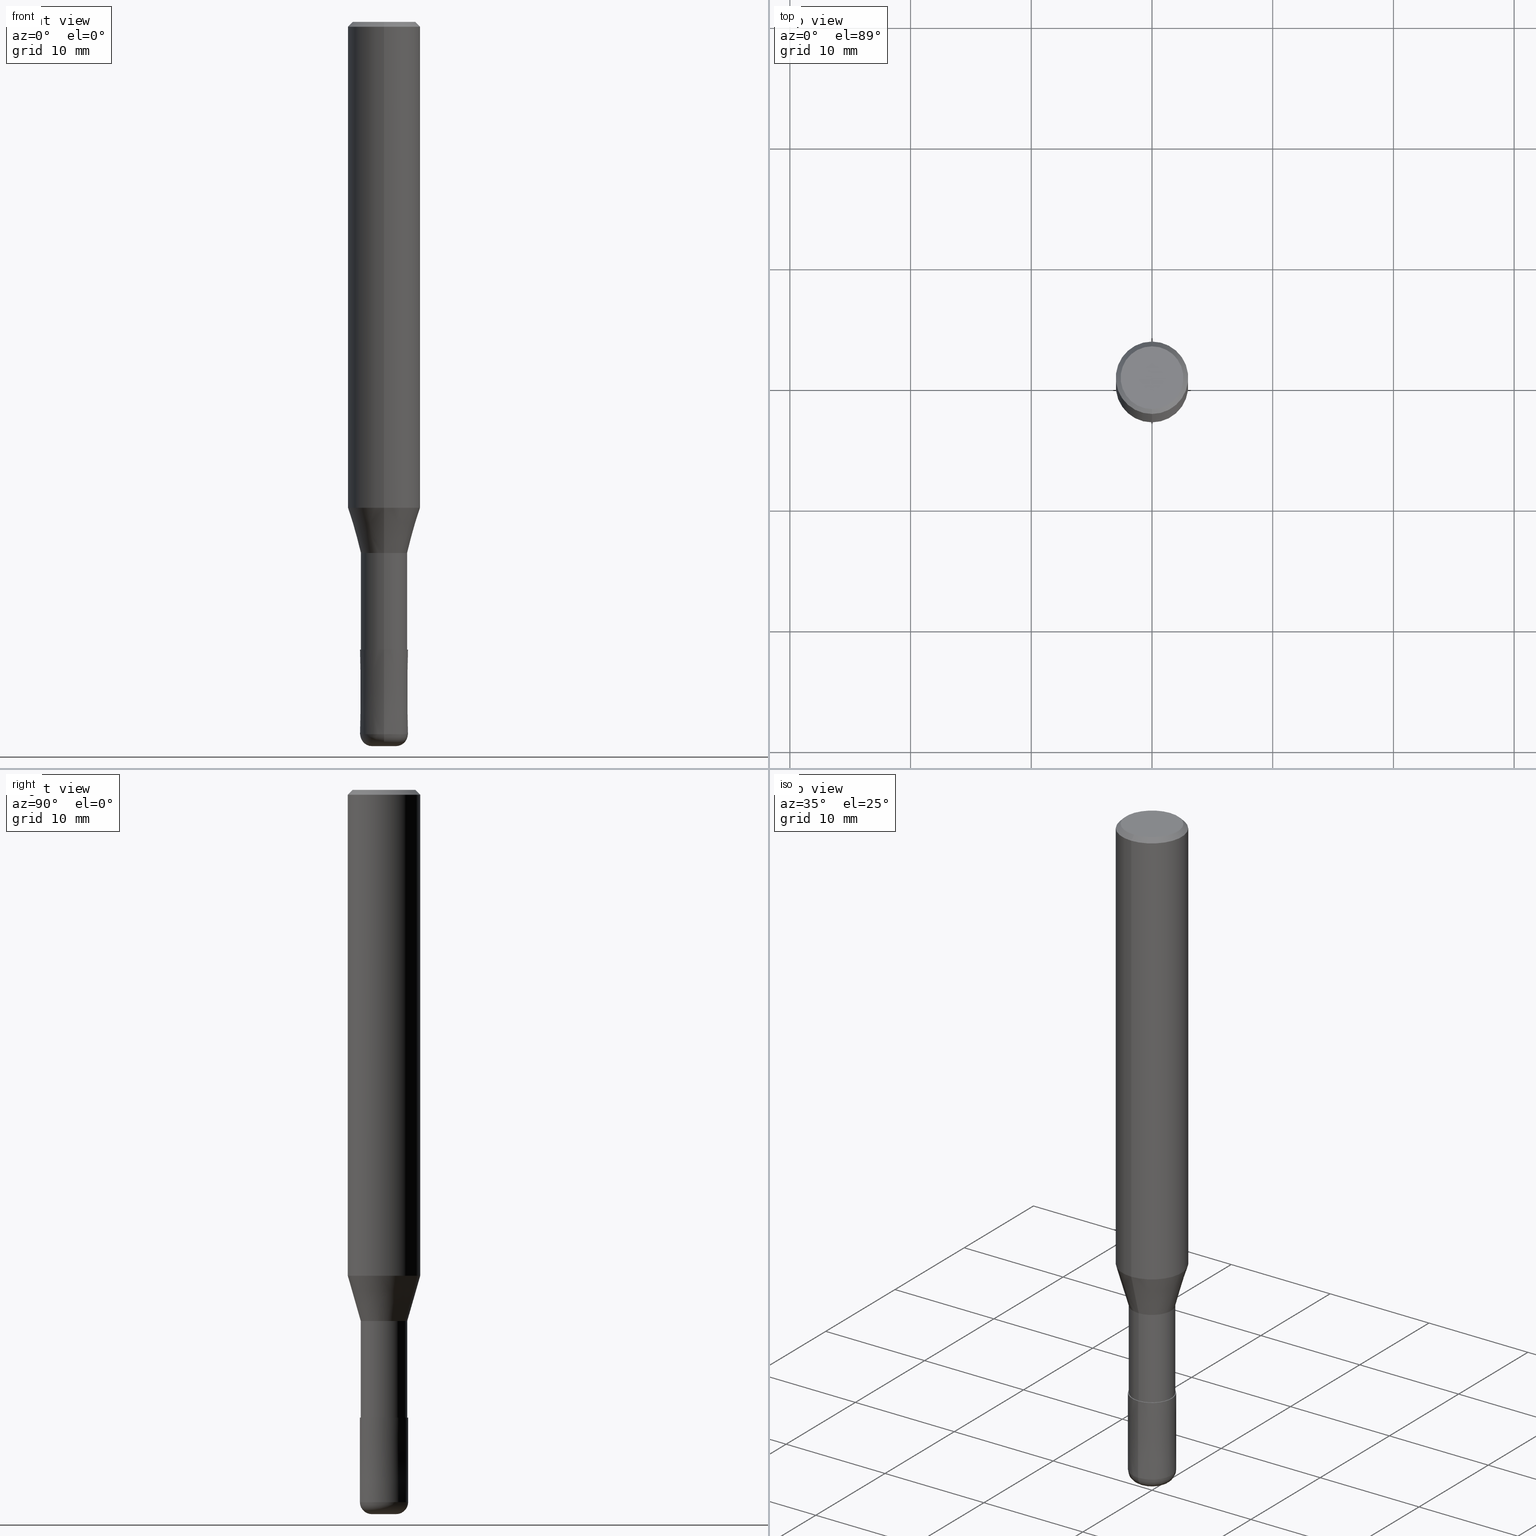
[diagram: canonical four-view strip — front | top / right | iso, engineering-drawing reading convention]
A machine part, canonical four-view strip (front | top / right | iso — engineering-drawing reading convention). The complete STEP part file that produces these views, byte-faithful:
ISO-10303-21;
HEADER;
FILE_DESCRIPTION(('no description'),'unknown implementation level');
FILE_NAME('CXLRS5040-10-16-Huellk.stp','  ',('CIMSOURCE GmbH'),('CADClick - KiM GmbH - www.kimweb.de'),'unknown preprocess','ACIS','unknown authorization');
FILE_SCHEMA(('automotive_design'));
ENDSEC;
DATA;
#1=MECHANICAL_DESIGN_GEOMETRIC_PRESENTATION_REPRESENTATION(' ',(#14,#15,#16,#17,#18,#19,#20,#21,#22,#23,#24,#25,#26,#27,#28,#29,#30,#31,#32,#33,#34,#35,#36,#37,#38,#39,#40,#41,#42,#43,#44,#45,#46,#47,#48,#49,#50,#51,#52,#53,#54,#55,#56,#57,#58,#59,#60,#61,#62,#63,#64,#65,#66,#67,#68,#69,#70,#71,#72,#73,#74,#75,#76,#77,#78,#79,#80,#81,#82,#83,#84,#85,#86,#87,#88,#89,#90,#91,#92,#93,#94,#95,#96,#97,#98,#99,#100,#101,#102,#103,#104,#105),#10);
#2=PRODUCT_DEFINITION_CONTEXT('',#106,'design');
#3=APPLICATION_PROTOCOL_DEFINITION('INTERNATIONAL STANDARD','automotive_design',1994,#106);
#4=PRODUCT_CATEGORY_RELATIONSHIP('NONE','NONE',#107,#108);
#5=SHAPE_DEFINITION_REPRESENTATION(#109,#110);
#6=PRODUCT_DEFINITION_CONTEXT('',#111,'design');
#7=APPLICATION_PROTOCOL_DEFINITION('INTERNATIONAL STANDARD','automotive_design',1994,#111);
#8=PRODUCT_CATEGORY_RELATIONSHIP('NONE','NONE',#112,#113);
#9=SHAPE_DEFINITION_REPRESENTATION(#114,#115);
#10= (GEOMETRIC_REPRESENTATION_CONTEXT(3)GLOBAL_UNCERTAINTY_ASSIGNED_CONTEXT((#118))GLOBAL_UNIT_ASSIGNED_CONTEXT((#120,#121,#122))REPRESENTATION_CONTEXT('NONE','WORKSPACE'));
#14=STYLED_ITEM('',(#124),#125);
#15=STYLED_ITEM('',(#126),#127);
#16=STYLED_ITEM('',(#128),#129);
#17=STYLED_ITEM('',(#130),#131);
#18=STYLED_ITEM('',(#132),#133);
#19=STYLED_ITEM('',(#134),#135);
#20=STYLED_ITEM('',(#136),#137);
#21=STYLED_ITEM('',(#138),#139);
#22=STYLED_ITEM('',(#140),#141);
#23=STYLED_ITEM('',(#142),#143);
#24=STYLED_ITEM('',(#144),#145);
#25=STYLED_ITEM('',(#146),#147);
#26=STYLED_ITEM('',(#148),#149);
#27=STYLED_ITEM('',(#150),#151);
#28=STYLED_ITEM('',(#152),#153);
#29=STYLED_ITEM('',(#154),#155);
#30=STYLED_ITEM('',(#156),#157);
#31=STYLED_ITEM('',(#158),#159);
#32=STYLED_ITEM('',(#160),#161);
#33=STYLED_ITEM('',(#162),#163);
#34=STYLED_ITEM('',(#164),#165);
#35=STYLED_ITEM('',(#166),#167);
#36=STYLED_ITEM('',(#168),#169);
#37=STYLED_ITEM('',(#170),#171);
#38=STYLED_ITEM('',(#172),#173);
#39=STYLED_ITEM('',(#174),#175);
#40=STYLED_ITEM('',(#176),#177);
#41=STYLED_ITEM('',(#178),#179);
#42=STYLED_ITEM('',(#180),#181);
#43=STYLED_ITEM('',(#182),#183);
#44=STYLED_ITEM('',(#184),#185);
#45=STYLED_ITEM('',(#186),#187);
#46=STYLED_ITEM('',(#188),#189);
#47=STYLED_ITEM('',(#190),#191);
#48=STYLED_ITEM('',(#192),#193);
#49=STYLED_ITEM('',(#194),#195);
#50=STYLED_ITEM('',(#196),#197);
#51=STYLED_ITEM('',(#198),#199);
#52=STYLED_ITEM('',(#200),#201);
#53=STYLED_ITEM('',(#202),#203);
#54=STYLED_ITEM('',(#204),#205);
#55=STYLED_ITEM('',(#206),#207);
#56=STYLED_ITEM('',(#208),#209);
#57=STYLED_ITEM('',(#210),#211);
#58=STYLED_ITEM('',(#212),#213);
#59=STYLED_ITEM('',(#214),#215);
#60=STYLED_ITEM('',(#216),#217);
#61=STYLED_ITEM('',(#218),#219);
#62=STYLED_ITEM('',(#220),#221);
#63=STYLED_ITEM('',(#222),#223);
#64=STYLED_ITEM('',(#224),#225);
#65=STYLED_ITEM('',(#226),#227);
#66=STYLED_ITEM('',(#228),#229);
#67=STYLED_ITEM('',(#230),#231);
#68=STYLED_ITEM('',(#232),#233);
#69=STYLED_ITEM('',(#234),#235);
#70=STYLED_ITEM('',(#236),#237);
#71=STYLED_ITEM('',(#238),#239);
#72=STYLED_ITEM('',(#240),#241);
#73=STYLED_ITEM('',(#242),#243);
#74=STYLED_ITEM('',(#244),#245);
#75=STYLED_ITEM('',(#246),#247);
#76=STYLED_ITEM('',(#248),#249);
#77=STYLED_ITEM('',(#250),#251);
#78=STYLED_ITEM('',(#252),#253);
#79=STYLED_ITEM('',(#254),#255);
#80=STYLED_ITEM('',(#256),#257);
#81=STYLED_ITEM('',(#258),#259);
#82=STYLED_ITEM('',(#260),#261);
#83=STYLED_ITEM('',(#262),#263);
#84=STYLED_ITEM('',(#264),#265);
#85=STYLED_ITEM('',(#266),#267);
#86=STYLED_ITEM('',(#268),#269);
#87=STYLED_ITEM('',(#270),#271);
#88=STYLED_ITEM('',(#272),#273);
#89=STYLED_ITEM('',(#274),#275);
#90=STYLED_ITEM('',(#276),#277);
#91=STYLED_ITEM('',(#278),#279);
#92=STYLED_ITEM('',(#280),#281);
#93=STYLED_ITEM('',(#282),#283);
#94=STYLED_ITEM('',(#284),#285);
#95=STYLED_ITEM('',(#286),#287);
#96=STYLED_ITEM('',(#288),#289);
#97=STYLED_ITEM('',(#290),#291);
#98=STYLED_ITEM('',(#292),#293);
#99=STYLED_ITEM('',(#294),#295);
#100=STYLED_ITEM('',(#296),#297);
#101=STYLED_ITEM('',(#298),#299);
#102=STYLED_ITEM('',(#300),#301);
#103=STYLED_ITEM('',(#302),#303);
#104=STYLED_ITEM('',(#304),#305);
#105=STYLED_ITEM('',(#306),#307);
#106=APPLICATION_CONTEXT(' ');
#107=PRODUCT_CATEGORY('part','NONE');
#108=PRODUCT_RELATED_PRODUCT_CATEGORY('detail',' ',(#308));
#109=PRODUCT_DEFINITION_SHAPE('NONE','NONE',#309);
#110=ADVANCED_BREP_SHAPE_REPRESENTATION('1',(#285,#310),#10);
#111=APPLICATION_CONTEXT(' ');
#112=PRODUCT_CATEGORY('part','NONE');
#113=PRODUCT_RELATED_PRODUCT_CATEGORY('detail',' ',(#311));
#114=PRODUCT_DEFINITION_SHAPE('NONE','NONE',#312);
#115=ADVANCED_BREP_SHAPE_REPRESENTATION('2',(#257,#313),#10);
#118=UNCERTAINTY_MEASURE_WITH_UNIT(LENGTH_MEASURE(1.0E-006),#120,'','');
#120= (CONVERSION_BASED_UNIT('MILLIMETRE',#316)LENGTH_UNIT()NAMED_UNIT(#319));
#121= (NAMED_UNIT(#321)PLANE_ANGLE_UNIT()SI_UNIT($,.RADIAN.));
#122= (NAMED_UNIT(#321)SOLID_ANGLE_UNIT()SI_UNIT($,.STERADIAN.));
#124=PRESENTATION_STYLE_ASSIGNMENT((#327));
#125=EDGE_CURVE('',#203,#299,#328,.T.);
#126=PRESENTATION_STYLE_ASSIGNMENT((#329));
#127=ADVANCED_FACE('',(#330),#331,.T.);
#128=PRESENTATION_STYLE_ASSIGNMENT((#332));
#129=EDGE_CURVE('',#283,#137,#333,.T.);
#130=PRESENTATION_STYLE_ASSIGNMENT((#334));
#131=ADVANCED_FACE('',(#335,#336),#337,.T.);
#132=PRESENTATION_STYLE_ASSIGNMENT((#338));
#133=ADVANCED_FACE('',(#339),#340,.T.);
#134=PRESENTATION_STYLE_ASSIGNMENT((#341));
#135=EDGE_CURVE('',#153,#151,#342,.T.);
#136=PRESENTATION_STYLE_ASSIGNMENT((#343));
#137=VERTEX_POINT('',#344);
#138=PRESENTATION_STYLE_ASSIGNMENT((#345));
#139=ADVANCED_FACE('',(#346),#347,.T.);
#140=PRESENTATION_STYLE_ASSIGNMENT((#348));
#141=ADVANCED_FACE('',(#349),#350,.T.);
#142=PRESENTATION_STYLE_ASSIGNMENT((#351));
#143=VERTEX_POINT('',#352);
#144=PRESENTATION_STYLE_ASSIGNMENT((#353));
#145=ADVANCED_FACE('',(#354),#355,.T.);
#146=PRESENTATION_STYLE_ASSIGNMENT((#356));
#147=EDGE_CURVE('',#265,#227,#357,.T.);
#148=PRESENTATION_STYLE_ASSIGNMENT((#358));
#149=VERTEX_POINT('',#359);
#150=PRESENTATION_STYLE_ASSIGNMENT((#360));
#151=VERTEX_POINT('',#361);
#152=PRESENTATION_STYLE_ASSIGNMENT((#362));
#153=VERTEX_POINT('',#363);
#154=PRESENTATION_STYLE_ASSIGNMENT((#364));
#155=EDGE_CURVE('',#157,#283,#365,.T.);
#156=PRESENTATION_STYLE_ASSIGNMENT((#366));
#157=VERTEX_POINT('',#367);
#158=PRESENTATION_STYLE_ASSIGNMENT((#368));
#159=ADVANCED_FACE('',(#369),#370,.T.);
#160=PRESENTATION_STYLE_ASSIGNMENT((#371));
#161=VERTEX_POINT('',#372);
#162=PRESENTATION_STYLE_ASSIGNMENT((#373));
#163=VERTEX_POINT('',#374);
#164=PRESENTATION_STYLE_ASSIGNMENT((#375));
#165=EDGE_CURVE('',#151,#191,#376,.T.);
#166=PRESENTATION_STYLE_ASSIGNMENT((#377));
#167=EDGE_CURVE('',#161,#153,#378,.T.);
#168=PRESENTATION_STYLE_ASSIGNMENT((#379));
#169=EDGE_CURVE('',#149,#307,#380,.T.);
#170=PRESENTATION_STYLE_ASSIGNMENT((#381));
#171=EDGE_CURVE('',#161,#191,#382,.T.);
#172=PRESENTATION_STYLE_ASSIGNMENT((#383));
#173=EDGE_CURVE('',#307,#263,#384,.T.);
#174=PRESENTATION_STYLE_ASSIGNMENT((#385));
#175=VERTEX_POINT('',#386);
#176=PRESENTATION_STYLE_ASSIGNMENT((#387));
#177=VERTEX_POINT('',#388);
#178=PRESENTATION_STYLE_ASSIGNMENT((#389));
#179=ADVANCED_FACE('',(#390),#391,.T.);
#180=PRESENTATION_STYLE_ASSIGNMENT((#392));
#181=VERTEX_POINT('',#393);
#182=PRESENTATION_STYLE_ASSIGNMENT((#394));
#183=EDGE_CURVE('',#177,#261,#395,.T.);
#184=PRESENTATION_STYLE_ASSIGNMENT((#396));
#185=EDGE_CURVE('',#255,#163,#397,.T.);
#186=PRESENTATION_STYLE_ASSIGNMENT((#398));
#187=ADVANCED_FACE('',(#399),#400,.T.);
#188=PRESENTATION_STYLE_ASSIGNMENT((#401));
#189=EDGE_CURVE('',#293,#143,#402,.T.);
#190=PRESENTATION_STYLE_ASSIGNMENT((#403));
#191=VERTEX_POINT('',#404);
#192=PRESENTATION_STYLE_ASSIGNMENT((#405));
#193=EDGE_CURVE('',#261,#177,#406,.T.);
#194=PRESENTATION_STYLE_ASSIGNMENT((#407));
#195=ADVANCED_FACE('',(#408),#409,.F.);
#196=PRESENTATION_STYLE_ASSIGNMENT((#410));
#197=EDGE_CURVE('',#227,#265,#411,.T.);
#198=PRESENTATION_STYLE_ASSIGNMENT((#412));
#199=EDGE_CURVE('',#251,#265,#413,.T.);
#200=PRESENTATION_STYLE_ASSIGNMENT((#414));
#201=EDGE_CURVE('',#143,#293,#415,.T.);
#202=PRESENTATION_STYLE_ASSIGNMENT((#416));
#203=VERTEX_POINT('',#417);
#204=PRESENTATION_STYLE_ASSIGNMENT((#418));
#205=EDGE_CURVE('',#261,#295,#419,.T.);
#206=PRESENTATION_STYLE_ASSIGNMENT((#420));
#207=ADVANCED_FACE('',(#421),#422,.T.);
#208=PRESENTATION_STYLE_ASSIGNMENT((#423));
#209=EDGE_CURVE('',#251,#181,#424,.T.);
#210=PRESENTATION_STYLE_ASSIGNMENT((#425));
#211=EDGE_CURVE('',#237,#149,#426,.T.);
#212=PRESENTATION_STYLE_ASSIGNMENT((#427));
#213=ADVANCED_FACE('',(#428),#429,.T.);
#214=PRESENTATION_STYLE_ASSIGNMENT((#430));
#215=ADVANCED_FACE('',(#431,#432),#433,.T.);
#216=PRESENTATION_STYLE_ASSIGNMENT((#434));
#217=EDGE_CURVE('',#237,#263,#435,.T.);
#218=PRESENTATION_STYLE_ASSIGNMENT((#436));
#219=EDGE_CURVE('',#251,#163,#437,.T.);
#220=PRESENTATION_STYLE_ASSIGNMENT((#438));
#221=ADVANCED_FACE('',(#439,#440),#441,.T.);
#222=PRESENTATION_STYLE_ASSIGNMENT((#442));
#223=EDGE_CURVE('',#191,#161,#443,.T.);
#224=PRESENTATION_STYLE_ASSIGNMENT((#444));
#225=ADVANCED_FACE('',(#445,#446),#447,.T.);
#226=PRESENTATION_STYLE_ASSIGNMENT((#448));
#227=VERTEX_POINT('',#449);
#228=PRESENTATION_STYLE_ASSIGNMENT((#450));
#229=EDGE_CURVE('',#307,#149,#451,.T.);
#230=PRESENTATION_STYLE_ASSIGNMENT((#452));
#231=ADVANCED_FACE('',(#453),#454,.T.);
#232=PRESENTATION_STYLE_ASSIGNMENT((#455));
#233=EDGE_CURVE('',#253,#177,#456,.T.);
#234=PRESENTATION_STYLE_ASSIGNMENT((#457));
#235=EDGE_CURVE('',#175,#157,#458,.T.);
#236=PRESENTATION_STYLE_ASSIGNMENT((#459));
#237=VERTEX_POINT('',#460);
#238=PRESENTATION_STYLE_ASSIGNMENT((#461));
#239=EDGE_CURVE('',#263,#237,#462,.T.);
#240=PRESENTATION_STYLE_ASSIGNMENT((#463));
#241=EDGE_CURVE('',#293,#237,#464,.T.);
#242=PRESENTATION_STYLE_ASSIGNMENT((#465));
#243=EDGE_CURVE('',#283,#157,#466,.T.);
#244=PRESENTATION_STYLE_ASSIGNMENT((#467));
#245=EDGE_CURVE('',#253,#295,#468,.T.);
#246=PRESENTATION_STYLE_ASSIGNMENT((#469));
#247=EDGE_CURVE('',#137,#175,#470,.T.);
#248=PRESENTATION_STYLE_ASSIGNMENT((#471));
#249=ADVANCED_FACE('',(#472),#473,.T.);
#250=PRESENTATION_STYLE_ASSIGNMENT((#474));
#251=VERTEX_POINT('',#475);
#252=PRESENTATION_STYLE_ASSIGNMENT((#476));
#253=VERTEX_POINT('',#477);
#254=PRESENTATION_STYLE_ASSIGNMENT((#478));
#255=VERTEX_POINT('',#479);
#256=PRESENTATION_STYLE_ASSIGNMENT((#480));
#257=MANIFOLD_SOLID_BREP('2',#481);
#258=PRESENTATION_STYLE_ASSIGNMENT((#482));
#259=EDGE_CURVE('',#175,#137,#483,.T.);
#260=PRESENTATION_STYLE_ASSIGNMENT((#484));
#261=VERTEX_POINT('',#485);
#262=PRESENTATION_STYLE_ASSIGNMENT((#486));
#263=VERTEX_POINT('',#487);
#264=PRESENTATION_STYLE_ASSIGNMENT((#488));
#265=VERTEX_POINT('',#489);
#266=PRESENTATION_STYLE_ASSIGNMENT((#490));
#267=EDGE_CURVE('',#227,#163,#491,.T.);
#268=PRESENTATION_STYLE_ASSIGNMENT((#492));
#269=ADVANCED_FACE('',(#493),#494,.T.);
#270=PRESENTATION_STYLE_ASSIGNMENT((#495));
#271=EDGE_CURVE('',#137,#203,#496,.T.);
#272=PRESENTATION_STYLE_ASSIGNMENT((#497));
#273=EDGE_CURVE('',#299,#175,#498,.T.);
#274=PRESENTATION_STYLE_ASSIGNMENT((#499));
#275=ADVANCED_FACE('',(#500),#501,.T.);
#276=PRESENTATION_STYLE_ASSIGNMENT((#502));
#277=EDGE_CURVE('',#263,#143,#503,.T.);
#278=PRESENTATION_STYLE_ASSIGNMENT((#504));
#279=EDGE_CURVE('',#295,#253,#505,.T.);
#280=PRESENTATION_STYLE_ASSIGNMENT((#506));
#281=EDGE_CURVE('',#299,#203,#507,.T.);
#282=PRESENTATION_STYLE_ASSIGNMENT((#508));
#283=VERTEX_POINT('',#509);
#284=PRESENTATION_STYLE_ASSIGNMENT((#510));
#285=MANIFOLD_SOLID_BREP('1',#511);
#286=PRESENTATION_STYLE_ASSIGNMENT((#512));
#287=ADVANCED_FACE('',(#513),#514,.T.);
#288=PRESENTATION_STYLE_ASSIGNMENT((#515));
#289=ADVANCED_FACE('',(#516),#517,.F.);
#290=PRESENTATION_STYLE_ASSIGNMENT((#518));
#291=EDGE_CURVE('',#181,#255,#519,.T.);
#292=PRESENTATION_STYLE_ASSIGNMENT((#520));
#293=VERTEX_POINT('',#521);
#294=PRESENTATION_STYLE_ASSIGNMENT((#522));
#295=VERTEX_POINT('',#523);
#296=PRESENTATION_STYLE_ASSIGNMENT((#524));
#297=EDGE_CURVE('',#151,#153,#525,.T.);
#298=PRESENTATION_STYLE_ASSIGNMENT((#526));
#299=VERTEX_POINT('',#527);
#300=PRESENTATION_STYLE_ASSIGNMENT((#528));
#301=EDGE_CURVE('',#255,#181,#529,.T.);
#302=PRESENTATION_STYLE_ASSIGNMENT((#530));
#303=ADVANCED_FACE('',(#531),#532,.T.);
#304=PRESENTATION_STYLE_ASSIGNMENT((#533));
#305=EDGE_CURVE('',#163,#251,#534,.T.);
#306=PRESENTATION_STYLE_ASSIGNMENT((#535));
#307=VERTEX_POINT('',#536);
#308=PRODUCT('1','1','PART-1-DESC',(#537));
#309=PRODUCT_DEFINITION('NONE','NONE',#538,#2);
#310=AXIS2_PLACEMENT_3D('',#539,#540,#541);
#311=PRODUCT('2','2','PART-2-DESC',(#542));
#312=PRODUCT_DEFINITION('NONE','NONE',#543,#6);
#313=AXIS2_PLACEMENT_3D('',#544,#545,#546);
#316=LENGTH_MEASURE_WITH_UNIT(LENGTH_MEASURE(1.0),#547);
#319=DIMENSIONAL_EXPONENTS(1.0,0.0,0.0,0.0,0.0,0.0,0.0);
#321=DIMENSIONAL_EXPONENTS(0.0,0.0,0.0,0.0,0.0,0.0,0.0);
#327=CURVE_STYLE('',#548,POSITIVE_LENGTH_MEASURE(1.0E-006),#549);
#328=CIRCLE('',#550,2.99995);
#329=SURFACE_STYLE_USAGE(.BOTH.,#551);
#330=FACE_OUTER_BOUND('',#552,.T.);
#331=CYLINDRICAL_SURFACE('',#553,1.92495);
#332=CURVE_STYLE('',#554,POSITIVE_LENGTH_MEASURE(1.0E-006),#555);
#333=LINE('',#556,#557);
#334=SURFACE_STYLE_USAGE(.BOTH.,#558);
#335=FACE_BOUND('',#559,.T.);
#336=FACE_OUTER_BOUND('',#560,.T.);
#337=PLANE('',#561);
#338=SURFACE_STYLE_USAGE(.BOTH.,#562);
#339=FACE_OUTER_BOUND('',#563,.T.);
#340=CYLINDRICAL_SURFACE('',#564,0.9);
#341=CURVE_STYLE('',#565,POSITIVE_LENGTH_MEASURE(1.0E-006),#566);
#342=CIRCLE('',#567,0.9);
#343=POINT_STYLE(' ',#568,POSITIVE_LENGTH_MEASURE(1.0E-006),#569);
#344=CARTESIAN_POINT('',(2.35730600079038E-016,-1.92495,-44.0));
#345=SURFACE_STYLE_USAGE(.BOTH.,#570);
#346=FACE_OUTER_BOUND('',#571,.T.);
#347=TOROIDAL_SURFACE('',#572,0.999999999999999,1.0);
#348=SURFACE_STYLE_USAGE(.BOTH.,#573);
#349=FACE_OUTER_BOUND('',#574,.T.);
#350=CYLINDRICAL_SURFACE('',#575,0.9);
#351=POINT_STYLE(' ',#576,POSITIVE_LENGTH_MEASURE(1.0E-006),#577);
#352=CARTESIAN_POINT('',(0.0,3.0,-40.251));
#353=SURFACE_STYLE_USAGE(.BOTH.,#578);
#354=FACE_OUTER_BOUND('',#579,.T.);
#355=CONICAL_SURFACE('',#580,2.8,0.78539816339745);
#356=CURVE_STYLE('',#581,POSITIVE_LENGTH_MEASURE(1.0E-006),#582);
#357=CIRCLE('',#583,1.0);
#358=POINT_STYLE(' ',#584,POSITIVE_LENGTH_MEASURE(1.0E-006),#585);
#359=CARTESIAN_POINT('',(3.18397651993818E-016,-2.6,0.0));
#360=POINT_STYLE(' ',#586,POSITIVE_LENGTH_MEASURE(1.0E-006),#587);
#361=CARTESIAN_POINT('',(1.10214571844014E-016,-0.9,-60.0));
#362=POINT_STYLE(' ',#588,POSITIVE_LENGTH_MEASURE(1.0E-006),#589);
#363=CARTESIAN_POINT('',(0.0,0.9,-60.0));
#364=CURVE_STYLE('',#590,POSITIVE_LENGTH_MEASURE(1.0E-006),#591);
#365=CIRCLE('',#592,1.92495);
#366=POINT_STYLE(' ',#593,POSITIVE_LENGTH_MEASURE(1.0E-006),#594);
#367=CARTESIAN_POINT('',(0.0,1.92495,-52.0));
#368=SURFACE_STYLE_USAGE(.BOTH.,#595);
#369=FACE_OUTER_BOUND('',#596,.T.);
#370=CYLINDRICAL_SURFACE('',#597,3.0);
#371=POINT_STYLE(' ',#598,POSITIVE_LENGTH_MEASURE(1.0E-006),#599);
#372=CARTESIAN_POINT('',(0.0,0.9,-52.0));
#373=POINT_STYLE(' ',#600,POSITIVE_LENGTH_MEASURE(1.0E-006),#601);
#374=CARTESIAN_POINT('',(0.0,2.0,-59.0));
#375=CURVE_STYLE('',#602,POSITIVE_LENGTH_MEASURE(1.0E-006),#603);
#376=LINE('',#604,#605);
#377=CURVE_STYLE('',#606,POSITIVE_LENGTH_MEASURE(1.0E-006),#607);
#378=LINE('',#608,#609);
#379=CURVE_STYLE('',#610,POSITIVE_LENGTH_MEASURE(1.0E-006),#611);
#380=CIRCLE('',#612,2.6);
#381=CURVE_STYLE('',#613,POSITIVE_LENGTH_MEASURE(1.0E-006),#614);
#382=CIRCLE('',#615,0.9);
#383=CURVE_STYLE('',#616,POSITIVE_LENGTH_MEASURE(1.0E-006),#617);
#384=LINE('',#618,#619);
#385=POINT_STYLE(' ',#620,POSITIVE_LENGTH_MEASURE(1.0E-006),#621);
#386=CARTESIAN_POINT('',(0.0,1.92495,-44.0));
#387=POINT_STYLE(' ',#622,POSITIVE_LENGTH_MEASURE(1.0E-006),#623);
#388=CARTESIAN_POINT('',(1.10214571844014E-016,-0.9,-52.0));
#389=SURFACE_STYLE_USAGE(.BOTH.,#624);
#390=FACE_OUTER_BOUND('',#625,.T.);
#391=CYLINDRICAL_SURFACE('',#626,3.0);
#392=POINT_STYLE(' ',#627,POSITIVE_LENGTH_MEASURE(1.0E-006),#628);
#393=CARTESIAN_POINT('',(2.44909024700937E-016,-1.9999,-52.0));
#394=CURVE_STYLE('',#629,POSITIVE_LENGTH_MEASURE(1.0E-006),#630);
#395=CIRCLE('',#631,0.9);
#396=CURVE_STYLE('',#632,POSITIVE_LENGTH_MEASURE(1.0E-006),#633);
#397=LINE('',#634,#635);
#398=SURFACE_STYLE_USAGE(.BOTH.,#636);
#399=FACE_OUTER_BOUND('',#637,.T.);
#400=PLANE('',#638);
#401=CURVE_STYLE('',#639,POSITIVE_LENGTH_MEASURE(1.0E-006),#640);
#402=CIRCLE('',#641,3.0);
#403=POINT_STYLE(' ',#642,POSITIVE_LENGTH_MEASURE(1.0E-006),#643);
#404=CARTESIAN_POINT('',(1.10214571844014E-016,-0.9,-52.0));
#405=CURVE_STYLE('',#644,POSITIVE_LENGTH_MEASURE(1.0E-006),#645);
#406=CIRCLE('',#646,0.9);
#407=SURFACE_STYLE_USAGE(.BOTH.,#647);
#408=FACE_OUTER_BOUND('',#648,.T.);
#409=CYLINDRICAL_SURFACE('',#649,0.9);
#410=CURVE_STYLE('',#650,POSITIVE_LENGTH_MEASURE(1.0E-006),#651);
#411=CIRCLE('',#652,1.0);
#412=CURVE_STYLE('',#653,POSITIVE_LENGTH_MEASURE(1.0E-006),#654);
#413=CIRCLE('',#655,1.0);
#414=CURVE_STYLE('',#656,POSITIVE_LENGTH_MEASURE(1.0E-006),#657);
#415=CIRCLE('',#658,3.0);
#416=POINT_STYLE(' ',#659,POSITIVE_LENGTH_MEASURE(1.0E-006),#660);
#417=CARTESIAN_POINT('',(3.67375783114944E-016,-2.99995,-40.251));
#418=CURVE_STYLE('',#661,POSITIVE_LENGTH_MEASURE(1.0E-006),#662);
#419=LINE('',#663,#664);
#420=SURFACE_STYLE_USAGE(.BOTH.,#665);
#421=FACE_OUTER_BOUND('',#666,.T.);
#422=TOROIDAL_SURFACE('',#667,0.999999999999999,1.0);
#423=CURVE_STYLE('',#668,POSITIVE_LENGTH_MEASURE(1.0E-006),#669);
#424=LINE('',#670,#671);
#425=CURVE_STYLE('',#672,POSITIVE_LENGTH_MEASURE(1.0E-006),#673);
#426=LINE('',#674,#675);
#427=SURFACE_STYLE_USAGE(.BOTH.,#676);
#428=FACE_OUTER_BOUND('',#677,.T.);
#429=CONICAL_SURFACE('',#678,2.8,0.78539816339745);
#430=SURFACE_STYLE_USAGE(.BOTH.,#679);
#431=FACE_OUTER_BOUND('',#680,.T.);
#432=FACE_BOUND('',#681,.T.);
#433=PLANE('',#682);
#434=CURVE_STYLE('',#683,POSITIVE_LENGTH_MEASURE(1.0E-006),#684);
#435=CIRCLE('',#685,3.0);
#436=CURVE_STYLE('',#686,POSITIVE_LENGTH_MEASURE(1.0E-006),#687);
#437=CIRCLE('',#688,2.0);
#438=SURFACE_STYLE_USAGE(.BOTH.,#689);
#439=FACE_BOUND('',#690,.T.);
#440=FACE_OUTER_BOUND('',#691,.T.);
#441=PLANE('',#692);
#442=CURVE_STYLE('',#693,POSITIVE_LENGTH_MEASURE(1.0E-006),#694);
#443=CIRCLE('',#695,0.9);
#444=SURFACE_STYLE_USAGE(.BOTH.,#696);
#445=FACE_OUTER_BOUND('',#697,.T.);
#446=FACE_BOUND('',#698,.T.);
#447=PLANE('',#699);
#448=POINT_STYLE(' ',#700,POSITIVE_LENGTH_MEASURE(1.0E-006),#701);
#449=CARTESIAN_POINT('',(0.0,1.0,-60.0));
#450=CURVE_STYLE('',#702,POSITIVE_LENGTH_MEASURE(1.0E-006),#703);
#451=CIRCLE('',#704,2.6);
#452=SURFACE_STYLE_USAGE(.BOTH.,#705);
#453=FACE_OUTER_BOUND('',#706,.T.);
#454=CONICAL_SURFACE('',#707,2.46245,0.279250597330102);
#455=CURVE_STYLE('',#708,POSITIVE_LENGTH_MEASURE(1.0E-006),#709);
#456=LINE('',#710,#711);
#457=CURVE_STYLE('',#712,POSITIVE_LENGTH_MEASURE(1.0E-006),#713);
#458=LINE('',#714,#715);
#459=POINT_STYLE(' ',#716,POSITIVE_LENGTH_MEASURE(1.0E-006),#717);
#460=CARTESIAN_POINT('',(3.67381906146713E-016,-3.0,-0.399999999999999));
#461=CURVE_STYLE('',#718,POSITIVE_LENGTH_MEASURE(1.0E-006),#719);
#462=CIRCLE('',#720,3.0);
#463=CURVE_STYLE('',#721,POSITIVE_LENGTH_MEASURE(1.0E-006),#722);
#464=LINE('',#723,#724);
#465=CURVE_STYLE('',#725,POSITIVE_LENGTH_MEASURE(1.0E-006),#726);
#466=CIRCLE('',#727,1.92495);
#467=CURVE_STYLE('',#728,POSITIVE_LENGTH_MEASURE(1.0E-006),#729);
#468=CIRCLE('',#730,0.9);
#469=CURVE_STYLE('',#731,POSITIVE_LENGTH_MEASURE(1.0E-006),#732);
#470=CIRCLE('',#733,1.92495);
#471=SURFACE_STYLE_USAGE(.BOTH.,#734);
#472=FACE_OUTER_BOUND('',#735,.T.);
#473=CONICAL_SURFACE('',#736,2.46245,0.279250597330102);
#474=POINT_STYLE(' ',#737,POSITIVE_LENGTH_MEASURE(1.0E-006),#738);
#475=CARTESIAN_POINT('',(2.44921270764476E-016,-2.0,-59.0));
#476=POINT_STYLE(' ',#739,POSITIVE_LENGTH_MEASURE(1.0E-006),#740);
#477=CARTESIAN_POINT('',(1.10214571844014E-016,-0.9,-59.9));
#478=POINT_STYLE(' ',#741,POSITIVE_LENGTH_MEASURE(1.0E-006),#742);
#479=CARTESIAN_POINT('',(0.0,1.9999,-52.0));
#480=SURFACE_STYLE_USAGE(.BOTH.,#743);
#481=CLOSED_SHELL('',(#195,#207,#303,#225,#287,#139,#131,#289));
#482=CURVE_STYLE('',#744,POSITIVE_LENGTH_MEASURE(1.0E-006),#745);
#483=CIRCLE('',#746,1.92495);
#484=POINT_STYLE(' ',#747,POSITIVE_LENGTH_MEASURE(1.0E-006),#748);
#485=CARTESIAN_POINT('',(0.0,0.9,-52.0));
#486=POINT_STYLE(' ',#749,POSITIVE_LENGTH_MEASURE(1.0E-006),#750);
#487=CARTESIAN_POINT('',(0.0,3.0,-0.399999999999999));
#488=POINT_STYLE(' ',#751,POSITIVE_LENGTH_MEASURE(1.0E-006),#752);
#489=CARTESIAN_POINT('',(1.22460635382238E-016,-1.0,-60.0));
#490=CURVE_STYLE('',#753,POSITIVE_LENGTH_MEASURE(1.0E-006),#754);
#491=CIRCLE('',#755,1.0);
#492=SURFACE_STYLE_USAGE(.BOTH.,#756);
#493=FACE_OUTER_BOUND('',#757,.T.);
#494=CYLINDRICAL_SURFACE('',#758,1.92495);
#495=CURVE_STYLE('',#759,POSITIVE_LENGTH_MEASURE(1.0E-006),#760);
#496=LINE('',#761,#762);
#497=CURVE_STYLE('',#763,POSITIVE_LENGTH_MEASURE(1.0E-006),#764);
#498=LINE('',#765,#766);
#499=SURFACE_STYLE_USAGE(.BOTH.,#767);
#500=FACE_OUTER_BOUND('',#768,.T.);
#501=PLANE('',#769);
#502=CURVE_STYLE('',#770,POSITIVE_LENGTH_MEASURE(1.0E-006),#771);
#503=LINE('',#772,#773);
#504=CURVE_STYLE('',#774,POSITIVE_LENGTH_MEASURE(1.0E-006),#775);
#505=CIRCLE('',#776,0.9);
#506=CURVE_STYLE('',#777,POSITIVE_LENGTH_MEASURE(1.0E-006),#778);
#507=CIRCLE('',#779,2.99995);
#508=POINT_STYLE(' ',#780,POSITIVE_LENGTH_MEASURE(1.0E-006),#781);
#509=CARTESIAN_POINT('',(2.35730600079039E-016,-1.92495,-52.0));
#510=SURFACE_STYLE_USAGE(.BOTH.,#782);
#511=CLOSED_SHELL('',(#141,#127,#231,#159,#145,#215,#187,#213,#179,#249,#269,#221,#133,#275));
#512=SURFACE_STYLE_USAGE(.BOTH.,#783);
#513=FACE_OUTER_BOUND('',#784,.T.);
#514=CONICAL_SURFACE('',#785,1.99995,1.42857142847409E-005);
#515=SURFACE_STYLE_USAGE(.BOTH.,#786);
#516=FACE_OUTER_BOUND('',#787,.T.);
#517=CYLINDRICAL_SURFACE('',#788,0.9);
#518=CURVE_STYLE('',#789,POSITIVE_LENGTH_MEASURE(1.0E-006),#790);
#519=CIRCLE('',#791,1.9999);
#520=POINT_STYLE(' ',#792,POSITIVE_LENGTH_MEASURE(1.0E-006),#793);
#521=CARTESIAN_POINT('',(3.67381906146713E-016,-3.0,-40.251));
#522=POINT_STYLE(' ',#794,POSITIVE_LENGTH_MEASURE(1.0E-006),#795);
#523=CARTESIAN_POINT('',(0.0,0.9,-59.9));
#524=CURVE_STYLE('',#796,POSITIVE_LENGTH_MEASURE(1.0E-006),#797);
#525=CIRCLE('',#798,0.9);
#526=POINT_STYLE(' ',#799,POSITIVE_LENGTH_MEASURE(1.0E-006),#800);
#527=CARTESIAN_POINT('',(0.0,2.99995,-40.251));
#528=CURVE_STYLE('',#801,POSITIVE_LENGTH_MEASURE(1.0E-006),#802);
#529=CIRCLE('',#803,1.9999);
#530=SURFACE_STYLE_USAGE(.BOTH.,#804);
#531=FACE_OUTER_BOUND('',#805,.T.);
#532=CONICAL_SURFACE('',#806,1.99995,1.42857142847409E-005);
#533=CURVE_STYLE('',#807,POSITIVE_LENGTH_MEASURE(1.0E-006),#808);
#534=CIRCLE('',#809,2.0);
#535=POINT_STYLE(' ',#810,POSITIVE_LENGTH_MEASURE(1.0E-006),#811);
#536=CARTESIAN_POINT('',(0.0,2.6,0.0));
#537=PRODUCT_CONTEXT('',#106,'mechanical');
#538=PRODUCT_DEFINITION_FORMATION_WITH_SPECIFIED_SOURCE(' ','NONE',#308,.NOT_KNOWN.);
#539=CARTESIAN_POINT('',(0.0,0.0,0.0));
#540=DIRECTION('',(0.0,0.0,1.0));
#541=DIRECTION('',(1.0,0.0,0.0));
#542=PRODUCT_CONTEXT('',#111,'mechanical');
#543=PRODUCT_DEFINITION_FORMATION_WITH_SPECIFIED_SOURCE(' ','NONE',#311,.NOT_KNOWN.);
#544=CARTESIAN_POINT('',(0.0,0.0,0.0));
#545=DIRECTION('',(0.0,0.0,1.0));
#546=DIRECTION('',(1.0,0.0,0.0));
#547= (NAMED_UNIT(#319)LENGTH_UNIT()SI_UNIT(.MILLI.,.METRE.));
#548=DRAUGHTING_PRE_DEFINED_CURVE_FONT('continuous');
#549=COLOUR_RGB('',0.498039215803146,0.498039215803146,0.498039215803146);
#550=AXIS2_PLACEMENT_3D('',#813,#814,#815);
#551=SURFACE_SIDE_STYLE('',(#816));
#552=EDGE_LOOP('',(#817,#818,#819,#820));
#553=AXIS2_PLACEMENT_3D('',#821,#822,#823);
#554=DRAUGHTING_PRE_DEFINED_CURVE_FONT('continuous');
#555=COLOUR_RGB('',0.498039215803146,0.498039215803146,0.498039215803146);
#556=CARTESIAN_POINT('',(2.35730600079039E-016,-1.92495,-48.0));
#557=VECTOR('',#824,1.0);
#558=SURFACE_SIDE_STYLE('',(#825));
#559=EDGE_LOOP('',(#826,#827));
#560=EDGE_LOOP('',(#828,#829));
#561=AXIS2_PLACEMENT_3D('',#830,#831,#832);
#562=SURFACE_SIDE_STYLE('',(#833));
#563=EDGE_LOOP('',(#834,#835,#836,#837));
#564=AXIS2_PLACEMENT_3D('',#838,#839,#840);
#565=DRAUGHTING_PRE_DEFINED_CURVE_FONT('continuous');
#566=COLOUR_RGB('',0.800000011920929,0.800000011920929,0.800000011920929);
#567=AXIS2_PLACEMENT_3D('',#841,#842,#843);
#568=PRE_DEFINED_MARKER('');
#569=COLOUR_RGB('',0.498039215803146,0.498039215803146,0.498039215803146);
#570=SURFACE_SIDE_STYLE('',(#844));
#571=EDGE_LOOP('',(#845,#846,#847,#848));
#572=AXIS2_PLACEMENT_3D('',#849,#850,#851);
#573=SURFACE_SIDE_STYLE('',(#852));
#574=EDGE_LOOP('',(#853,#854,#855,#856));
#575=AXIS2_PLACEMENT_3D('',#857,#858,#859);
#576=PRE_DEFINED_MARKER('');
#577=COLOUR_RGB('',0.498039215803146,0.498039215803146,0.498039215803146);
#578=SURFACE_SIDE_STYLE('',(#860));
#579=EDGE_LOOP('',(#861,#862,#863,#864));
#580=AXIS2_PLACEMENT_3D('',#865,#866,#867);
#581=DRAUGHTING_PRE_DEFINED_CURVE_FONT('continuous');
#582=COLOUR_RGB('',0.800000011920929,0.800000011920929,0.800000011920929);
#583=AXIS2_PLACEMENT_3D('',#868,#869,#870);
#584=PRE_DEFINED_MARKER('');
#585=COLOUR_RGB('',0.498039215803146,0.498039215803146,0.498039215803146);
#586=PRE_DEFINED_MARKER('');
#587=COLOUR_RGB('',0.800000011920929,0.800000011920929,0.800000011920929);
#588=PRE_DEFINED_MARKER('');
#589=COLOUR_RGB('',0.800000011920929,0.800000011920929,0.800000011920929);
#590=DRAUGHTING_PRE_DEFINED_CURVE_FONT('continuous');
#591=COLOUR_RGB('',0.498039215803146,0.498039215803146,0.498039215803146);
#592=AXIS2_PLACEMENT_3D('',#871,#872,#873);
#593=PRE_DEFINED_MARKER('');
#594=COLOUR_RGB('',0.498039215803146,0.498039215803146,0.498039215803146);
#595=SURFACE_SIDE_STYLE('',(#874));
#596=EDGE_LOOP('',(#875,#876,#877,#878));
#597=AXIS2_PLACEMENT_3D('',#879,#880,#881);
#598=PRE_DEFINED_MARKER('');
#599=COLOUR_RGB('',0.800000011920929,0.800000011920929,0.800000011920929);
#600=PRE_DEFINED_MARKER('');
#601=COLOUR_RGB('',0.800000011920929,0.800000011920929,0.800000011920929);
#602=DRAUGHTING_PRE_DEFINED_CURVE_FONT('continuous');
#603=COLOUR_RGB('',0.800000011920929,0.800000011920929,0.800000011920929);
#604=CARTESIAN_POINT('',(1.10214571844014E-016,-0.9,-56.0));
#605=VECTOR('',#882,1.0);
#606=DRAUGHTING_PRE_DEFINED_CURVE_FONT('continuous');
#607=COLOUR_RGB('',0.800000011920929,0.800000011920929,0.800000011920929);
#608=CARTESIAN_POINT('',(-1.10214571844014E-016,0.9,-56.0));
#609=VECTOR('',#883,1.0);
#610=DRAUGHTING_PRE_DEFINED_CURVE_FONT('continuous');
#611=COLOUR_RGB('',0.498039215803146,0.498039215803146,0.498039215803146);
#612=AXIS2_PLACEMENT_3D('',#884,#885,#886);
#613=DRAUGHTING_PRE_DEFINED_CURVE_FONT('continuous');
#614=COLOUR_RGB('',0.800000011920929,0.800000011920929,0.800000011920929);
#615=AXIS2_PLACEMENT_3D('',#887,#888,#889);
#616=DRAUGHTING_PRE_DEFINED_CURVE_FONT('continuous');
#617=COLOUR_RGB('',0.498039215803146,0.498039215803146,0.498039215803146);
#618=CARTESIAN_POINT('',(-3.42889779070266E-016,2.8,-0.200000000000003));
#619=VECTOR('',#890,1.0);
#620=PRE_DEFINED_MARKER('');
#621=COLOUR_RGB('',0.498039215803146,0.498039215803146,0.498039215803146);
#622=PRE_DEFINED_MARKER('');
#623=COLOUR_RGB('',0.498039215803146,0.498039215803146,0.498039215803146);
#624=SURFACE_SIDE_STYLE('',(#891));
#625=EDGE_LOOP('',(#892,#893,#894,#895));
#626=AXIS2_PLACEMENT_3D('',#896,#897,#898);
#627=PRE_DEFINED_MARKER('');
#628=COLOUR_RGB('',0.800000011920929,0.800000011920929,0.800000011920929);
#629=DRAUGHTING_PRE_DEFINED_CURVE_FONT('continuous');
#630=COLOUR_RGB('',0.498039215803146,0.498039215803146,0.498039215803146);
#631=AXIS2_PLACEMENT_3D('',#899,#900,#901);
#632=DRAUGHTING_PRE_DEFINED_CURVE_FONT('continuous');
#633=COLOUR_RGB('',0.800000011920929,0.800000011920929,0.800000011920929);
#634=CARTESIAN_POINT('',(-2.44915147732706E-016,1.99995,-55.5));
#635=VECTOR('',#902,1.0);
#636=SURFACE_SIDE_STYLE('',(#903));
#637=EDGE_LOOP('',(#904,#905));
#638=AXIS2_PLACEMENT_3D('',#906,#907,#908);
#639=DRAUGHTING_PRE_DEFINED_CURVE_FONT('continuous');
#640=COLOUR_RGB('',0.498039215803146,0.498039215803146,0.498039215803146);
#641=AXIS2_PLACEMENT_3D('',#909,#910,#911);
#642=PRE_DEFINED_MARKER('');
#643=COLOUR_RGB('',0.800000011920929,0.800000011920929,0.800000011920929);
#644=DRAUGHTING_PRE_DEFINED_CURVE_FONT('continuous');
#645=COLOUR_RGB('',0.498039215803146,0.498039215803146,0.498039215803146);
#646=AXIS2_PLACEMENT_3D('',#912,#913,#914);
#647=SURFACE_SIDE_STYLE('',(#915));
#648=EDGE_LOOP('',(#916,#917,#918,#919));
#649=AXIS2_PLACEMENT_3D('',#920,#921,#922);
#650=DRAUGHTING_PRE_DEFINED_CURVE_FONT('continuous');
#651=COLOUR_RGB('',0.800000011920929,0.800000011920929,0.800000011920929);
#652=AXIS2_PLACEMENT_3D('',#923,#924,#925);
#653=DRAUGHTING_PRE_DEFINED_CURVE_FONT('continuous');
#654=COLOUR_RGB('',0.800000011920929,0.800000011920929,0.800000011920929);
#655=AXIS2_PLACEMENT_3D('',#926,#927,#928);
#656=DRAUGHTING_PRE_DEFINED_CURVE_FONT('continuous');
#657=COLOUR_RGB('',0.498039215803146,0.498039215803146,0.498039215803146);
#658=AXIS2_PLACEMENT_3D('',#929,#930,#931);
#659=PRE_DEFINED_MARKER('');
#660=COLOUR_RGB('',0.498039215803146,0.498039215803146,0.498039215803146);
#661=DRAUGHTING_PRE_DEFINED_CURVE_FONT('continuous');
#662=COLOUR_RGB('',0.498039215803146,0.498039215803146,0.498039215803146);
#663=CARTESIAN_POINT('',(-1.10214571844014E-016,0.9,-55.95));
#664=VECTOR('',#932,1.0);
#665=SURFACE_SIDE_STYLE('',(#933));
#666=EDGE_LOOP('',(#934,#935,#936,#937));
#667=AXIS2_PLACEMENT_3D('',#938,#939,#940);
#668=DRAUGHTING_PRE_DEFINED_CURVE_FONT('continuous');
#669=COLOUR_RGB('',0.800000011920929,0.800000011920929,0.800000011920929);
#670=CARTESIAN_POINT('',(2.44915147732706E-016,-1.99995,-55.5));
#671=VECTOR('',#941,1.0);
#672=DRAUGHTING_PRE_DEFINED_CURVE_FONT('continuous');
#673=COLOUR_RGB('',0.498039215803146,0.498039215803146,0.498039215803146);
#674=CARTESIAN_POINT('',(3.42889779070266E-016,-2.8,-0.200000000000003));
#675=VECTOR('',#942,1.0);
#676=SURFACE_SIDE_STYLE('',(#943));
#677=EDGE_LOOP('',(#944,#945,#946,#947));
#678=AXIS2_PLACEMENT_3D('',#948,#949,#950);
#679=SURFACE_SIDE_STYLE('',(#951));
#680=EDGE_LOOP('',(#952,#953));
#681=EDGE_LOOP('',(#954,#955));
#682=AXIS2_PLACEMENT_3D('',#956,#957,#958);
#683=DRAUGHTING_PRE_DEFINED_CURVE_FONT('continuous');
#684=COLOUR_RGB('',0.498039215803146,0.498039215803146,0.498039215803146);
#685=AXIS2_PLACEMENT_3D('',#959,#960,#961);
#686=DRAUGHTING_PRE_DEFINED_CURVE_FONT('continuous');
#687=COLOUR_RGB('',0.800000011920929,0.800000011920929,0.800000011920929);
#688=AXIS2_PLACEMENT_3D('',#962,#963,#964);
#689=SURFACE_SIDE_STYLE('',(#965));
#690=EDGE_LOOP('',(#966,#967));
#691=EDGE_LOOP('',(#968,#969));
#692=AXIS2_PLACEMENT_3D('',#970,#971,#972);
#693=DRAUGHTING_PRE_DEFINED_CURVE_FONT('continuous');
#694=COLOUR_RGB('',0.800000011920929,0.800000011920929,0.800000011920929);
#695=AXIS2_PLACEMENT_3D('',#973,#974,#975);
#696=SURFACE_SIDE_STYLE('',(#976));
#697=EDGE_LOOP('',(#977,#978));
#698=EDGE_LOOP('',(#979,#980));
#699=AXIS2_PLACEMENT_3D('',#981,#982,#983);
#700=PRE_DEFINED_MARKER('');
#701=COLOUR_RGB('',0.800000011920929,0.800000011920929,0.800000011920929);
#702=DRAUGHTING_PRE_DEFINED_CURVE_FONT('continuous');
#703=COLOUR_RGB('',0.498039215803146,0.498039215803146,0.498039215803146);
#704=AXIS2_PLACEMENT_3D('',#984,#985,#986);
#705=SURFACE_SIDE_STYLE('',(#987));
#706=EDGE_LOOP('',(#988,#989,#990,#991));
#707=AXIS2_PLACEMENT_3D('',#992,#993,#994);
#708=DRAUGHTING_PRE_DEFINED_CURVE_FONT('continuous');
#709=COLOUR_RGB('',0.498039215803146,0.498039215803146,0.498039215803146);
#710=CARTESIAN_POINT('',(1.10214571844014E-016,-0.9,-55.95));
#711=VECTOR('',#995,1.0);
#712=DRAUGHTING_PRE_DEFINED_CURVE_FONT('continuous');
#713=COLOUR_RGB('',0.498039215803146,0.498039215803146,0.498039215803146);
#714=CARTESIAN_POINT('',(-2.35730600079039E-016,1.92495,-48.0));
#715=VECTOR('',#996,1.0);
#716=PRE_DEFINED_MARKER('');
#717=COLOUR_RGB('',0.498039215803146,0.498039215803146,0.498039215803146);
#718=DRAUGHTING_PRE_DEFINED_CURVE_FONT('continuous');
#719=COLOUR_RGB('',0.498039215803146,0.498039215803146,0.498039215803146);
#720=AXIS2_PLACEMENT_3D('',#997,#998,#999);
#721=DRAUGHTING_PRE_DEFINED_CURVE_FONT('continuous');
#722=COLOUR_RGB('',0.498039215803146,0.498039215803146,0.498039215803146);
#723=CARTESIAN_POINT('',(3.67381906146713E-016,-3.0,-20.3255));
#724=VECTOR('',#1000,1.0);
#725=DRAUGHTING_PRE_DEFINED_CURVE_FONT('continuous');
#726=COLOUR_RGB('',0.498039215803146,0.498039215803146,0.498039215803146);
#727=AXIS2_PLACEMENT_3D('',#1001,#1002,#1003);
#728=DRAUGHTING_PRE_DEFINED_CURVE_FONT('continuous');
#729=COLOUR_RGB('',0.498039215803146,0.498039215803146,0.498039215803146);
#730=AXIS2_PLACEMENT_3D('',#1004,#1005,#1006);
#731=DRAUGHTING_PRE_DEFINED_CURVE_FONT('continuous');
#732=COLOUR_RGB('',0.498039215803146,0.498039215803146,0.498039215803146);
#733=AXIS2_PLACEMENT_3D('',#1007,#1008,#1009);
#734=SURFACE_SIDE_STYLE('',(#1010));
#735=EDGE_LOOP('',(#1011,#1012,#1013,#1014));
#736=AXIS2_PLACEMENT_3D('',#1015,#1016,#1017);
#737=PRE_DEFINED_MARKER('');
#738=COLOUR_RGB('',0.800000011920929,0.800000011920929,0.800000011920929);
#739=PRE_DEFINED_MARKER('');
#740=COLOUR_RGB('',0.498039215803146,0.498039215803146,0.498039215803146);
#741=PRE_DEFINED_MARKER('');
#742=COLOUR_RGB('',0.800000011920929,0.800000011920929,0.800000011920929);
#743=SURFACE_SIDE_STYLE('',(#1018));
#744=DRAUGHTING_PRE_DEFINED_CURVE_FONT('continuous');
#745=COLOUR_RGB('',0.498039215803146,0.498039215803146,0.498039215803146);
#746=AXIS2_PLACEMENT_3D('',#1019,#1020,#1021);
#747=PRE_DEFINED_MARKER('');
#748=COLOUR_RGB('',0.498039215803146,0.498039215803146,0.498039215803146);
#749=PRE_DEFINED_MARKER('');
#750=COLOUR_RGB('',0.498039215803146,0.498039215803146,0.498039215803146);
#751=PRE_DEFINED_MARKER('');
#752=COLOUR_RGB('',0.800000011920929,0.800000011920929,0.800000011920929);
#753=DRAUGHTING_PRE_DEFINED_CURVE_FONT('continuous');
#754=COLOUR_RGB('',0.800000011920929,0.800000011920929,0.800000011920929);
#755=AXIS2_PLACEMENT_3D('',#1022,#1023,#1024);
#756=SURFACE_SIDE_STYLE('',(#1025));
#757=EDGE_LOOP('',(#1026,#1027,#1028,#1029));
#758=AXIS2_PLACEMENT_3D('',#1030,#1031,#1032);
#759=DRAUGHTING_PRE_DEFINED_CURVE_FONT('continuous');
#760=COLOUR_RGB('',0.498039215803146,0.498039215803146,0.498039215803146);
#761=CARTESIAN_POINT('',(3.01553191596991E-016,-2.46245,-42.1255));
#762=VECTOR('',#1033,1.0);
#763=DRAUGHTING_PRE_DEFINED_CURVE_FONT('continuous');
#764=COLOUR_RGB('',0.498039215803146,0.498039215803146,0.498039215803146);
#765=CARTESIAN_POINT('',(-3.01553191596991E-016,2.46245,-42.1255));
#766=VECTOR('',#1034,1.0);
#767=SURFACE_SIDE_STYLE('',(#1035));
#768=EDGE_LOOP('',(#1036,#1037));
#769=AXIS2_PLACEMENT_3D('',#1038,#1039,#1040);
#770=DRAUGHTING_PRE_DEFINED_CURVE_FONT('continuous');
#771=COLOUR_RGB('',0.498039215803146,0.498039215803146,0.498039215803146);
#772=CARTESIAN_POINT('',(-3.67381906146713E-016,3.0,-20.3255));
#773=VECTOR('',#1041,1.0);
#774=DRAUGHTING_PRE_DEFINED_CURVE_FONT('continuous');
#775=COLOUR_RGB('',0.498039215803146,0.498039215803146,0.498039215803146);
#776=AXIS2_PLACEMENT_3D('',#1042,#1043,#1044);
#777=DRAUGHTING_PRE_DEFINED_CURVE_FONT('continuous');
#778=COLOUR_RGB('',0.498039215803146,0.498039215803146,0.498039215803146);
#779=AXIS2_PLACEMENT_3D('',#1045,#1046,#1047);
#780=PRE_DEFINED_MARKER('');
#781=COLOUR_RGB('',0.498039215803146,0.498039215803146,0.498039215803146);
#782=SURFACE_SIDE_STYLE('',(#1048));
#783=SURFACE_SIDE_STYLE('',(#1049));
#784=EDGE_LOOP('',(#1050,#1051,#1052,#1053));
#785=AXIS2_PLACEMENT_3D('',#1054,#1055,#1056);
#786=SURFACE_SIDE_STYLE('',(#1057));
#787=EDGE_LOOP('',(#1058,#1059,#1060,#1061));
#788=AXIS2_PLACEMENT_3D('',#1062,#1063,#1064);
#789=DRAUGHTING_PRE_DEFINED_CURVE_FONT('continuous');
#790=COLOUR_RGB('',0.800000011920929,0.800000011920929,0.800000011920929);
#791=AXIS2_PLACEMENT_3D('',#1065,#1066,#1067);
#792=PRE_DEFINED_MARKER('');
#793=COLOUR_RGB('',0.498039215803146,0.498039215803146,0.498039215803146);
#794=PRE_DEFINED_MARKER('');
#795=COLOUR_RGB('',0.498039215803146,0.498039215803146,0.498039215803146);
#796=DRAUGHTING_PRE_DEFINED_CURVE_FONT('continuous');
#797=COLOUR_RGB('',0.800000011920929,0.800000011920929,0.800000011920929);
#798=AXIS2_PLACEMENT_3D('',#1068,#1069,#1070);
#799=PRE_DEFINED_MARKER('');
#800=COLOUR_RGB('',0.498039215803146,0.498039215803146,0.498039215803146);
#801=DRAUGHTING_PRE_DEFINED_CURVE_FONT('continuous');
#802=COLOUR_RGB('',0.800000011920929,0.800000011920929,0.800000011920929);
#803=AXIS2_PLACEMENT_3D('',#1071,#1072,#1073);
#804=SURFACE_SIDE_STYLE('',(#1074));
#805=EDGE_LOOP('',(#1075,#1076,#1077,#1078));
#806=AXIS2_PLACEMENT_3D('',#1079,#1080,#1081);
#807=DRAUGHTING_PRE_DEFINED_CURVE_FONT('continuous');
#808=COLOUR_RGB('',0.800000011920929,0.800000011920929,0.800000011920929);
#809=AXIS2_PLACEMENT_3D('',#1082,#1083,#1084);
#810=PRE_DEFINED_MARKER('');
#811=COLOUR_RGB('',0.498039215803146,0.498039215803146,0.498039215803146);
#813=CARTESIAN_POINT('',(0.0,0.0,-40.251));
#814=DIRECTION('',(0.0,0.0,-1.0));
#815=DIRECTION('',(0.0,1.0,0.0));
#816=SURFACE_STYLE_FILL_AREA(#1085);
#817=ORIENTED_EDGE('',*,*,#235,.F.);
#818=ORIENTED_EDGE('',*,*,#259,.T.);
#819=ORIENTED_EDGE('',*,*,#129,.F.);
#820=ORIENTED_EDGE('',*,*,#155,.F.);
#821=CARTESIAN_POINT('',(0.0,0.0,-48.0));
#822=DIRECTION('',(-0.0,-0.0,1.0));
#823=DIRECTION('',(0.0,1.0,0.0));
#824=DIRECTION('',(-0.0,-0.0,1.0));
#825=SURFACE_STYLE_FILL_AREA(#1086);
#826=ORIENTED_EDGE('',*,*,#135,.F.);
#827=ORIENTED_EDGE('',*,*,#297,.F.);
#828=ORIENTED_EDGE('',*,*,#197,.T.);
#829=ORIENTED_EDGE('',*,*,#147,.T.);
#830=CARTESIAN_POINT('',(0.0,0.95,-60.0));
#831=DIRECTION('',(0.0,0.0,-1.0));
#832=DIRECTION('',(0.0,1.0,0.0));
#833=SURFACE_STYLE_FILL_AREA(#1087);
#834=ORIENTED_EDGE('',*,*,#205,.T.);
#835=ORIENTED_EDGE('',*,*,#245,.F.);
#836=ORIENTED_EDGE('',*,*,#233,.T.);
#837=ORIENTED_EDGE('',*,*,#183,.T.);
#838=CARTESIAN_POINT('',(0.0,0.0,-55.95));
#839=DIRECTION('',(-0.0,-0.0,1.0));
#840=DIRECTION('',(0.0,1.0,0.0));
#841=CARTESIAN_POINT('',(0.0,0.0,-60.0));
#842=DIRECTION('',(0.0,0.0,-1.0));
#843=DIRECTION('',(0.0,1.0,0.0));
#844=SURFACE_STYLE_FILL_AREA(#1088);
#845=ORIENTED_EDGE('',*,*,#199,.T.);
#846=ORIENTED_EDGE('',*,*,#197,.F.);
#847=ORIENTED_EDGE('',*,*,#267,.T.);
#848=ORIENTED_EDGE('',*,*,#305,.T.);
#849=CARTESIAN_POINT('',(0.0,0.0,-59.0));
#850=DIRECTION('',(0.0,0.0,-1.0));
#851=DIRECTION('',(0.0,-1.0,0.0));
#852=SURFACE_STYLE_FILL_AREA(#1089);
#853=ORIENTED_EDGE('',*,*,#205,.F.);
#854=ORIENTED_EDGE('',*,*,#193,.T.);
#855=ORIENTED_EDGE('',*,*,#233,.F.);
#856=ORIENTED_EDGE('',*,*,#279,.F.);
#857=CARTESIAN_POINT('',(0.0,0.0,-55.95));
#858=DIRECTION('',(-0.0,-0.0,1.0));
#859=DIRECTION('',(0.0,1.0,0.0));
#860=SURFACE_STYLE_FILL_AREA(#1090);
#861=ORIENTED_EDGE('',*,*,#173,.F.);
#862=ORIENTED_EDGE('',*,*,#229,.T.);
#863=ORIENTED_EDGE('',*,*,#211,.F.);
#864=ORIENTED_EDGE('',*,*,#239,.F.);
#865=CARTESIAN_POINT('',(0.0,0.0,-0.200000000000003));
#866=DIRECTION('',(0.0,-0.0,-1.0));
#867=DIRECTION('',(0.0,1.0,0.0));
#868=CARTESIAN_POINT('',(0.0,0.0,-60.0));
#869=DIRECTION('',(0.0,0.0,-1.0));
#870=DIRECTION('',(0.0,1.0,0.0));
#871=CARTESIAN_POINT('',(0.0,0.0,-52.0));
#872=DIRECTION('',(0.0,0.0,-1.0));
#873=DIRECTION('',(0.0,1.0,0.0));
#874=SURFACE_STYLE_FILL_AREA(#1091);
#875=ORIENTED_EDGE('',*,*,#277,.F.);
#876=ORIENTED_EDGE('',*,*,#239,.T.);
#877=ORIENTED_EDGE('',*,*,#241,.F.);
#878=ORIENTED_EDGE('',*,*,#201,.F.);
#879=CARTESIAN_POINT('',(0.0,0.0,-20.3255));
#880=DIRECTION('',(-0.0,-0.0,1.0));
#881=DIRECTION('',(0.0,1.0,0.0));
#882=DIRECTION('',(0.0,-0.0,1.0));
#883=DIRECTION('',(0.0,-0.0,-1.0));
#884=CARTESIAN_POINT('',(0.0,0.0,0.0));
#885=DIRECTION('',(0.0,0.0,-1.0));
#886=DIRECTION('',(0.0,1.0,0.0));
#887=CARTESIAN_POINT('',(0.0,0.0,-52.0));
#888=DIRECTION('',(0.0,0.0,-1.0));
#889=DIRECTION('',(0.0,1.0,0.0));
#890=DIRECTION('',(-8.65927457071937E-017,0.707106781186549,-0.707106781186546));
#891=SURFACE_STYLE_FILL_AREA(#1092);
#892=ORIENTED_EDGE('',*,*,#277,.T.);
#893=ORIENTED_EDGE('',*,*,#189,.F.);
#894=ORIENTED_EDGE('',*,*,#241,.T.);
#895=ORIENTED_EDGE('',*,*,#217,.T.);
#896=CARTESIAN_POINT('',(0.0,0.0,-20.3255));
#897=DIRECTION('',(-0.0,-0.0,1.0));
#898=DIRECTION('',(0.0,1.0,0.0));
#899=CARTESIAN_POINT('',(0.0,0.0,-52.0));
#900=DIRECTION('',(0.0,0.0,-1.0));
#901=DIRECTION('',(0.0,1.0,0.0));
#902=DIRECTION('',(-1.74943764813898E-021,1.4285714284255E-005,-0.999999999897959));
#903=SURFACE_STYLE_FILL_AREA(#1093);
#904=ORIENTED_EDGE('',*,*,#229,.F.);
#905=ORIENTED_EDGE('',*,*,#169,.F.);
#906=CARTESIAN_POINT('',(0.0,1.3,0.0));
#907=DIRECTION('',(-0.0,0.0,1.0));
#908=DIRECTION('',(0.0,-1.0,0.0));
#909=CARTESIAN_POINT('',(0.0,0.0,-40.251));
#910=DIRECTION('',(0.0,0.0,-1.0));
#911=DIRECTION('',(0.0,1.0,0.0));
#912=CARTESIAN_POINT('',(0.0,0.0,-52.0));
#913=DIRECTION('',(0.0,0.0,-1.0));
#914=DIRECTION('',(0.0,1.0,0.0));
#915=SURFACE_STYLE_FILL_AREA(#1094);
#916=ORIENTED_EDGE('',*,*,#167,.F.);
#917=ORIENTED_EDGE('',*,*,#223,.F.);
#918=ORIENTED_EDGE('',*,*,#165,.F.);
#919=ORIENTED_EDGE('',*,*,#297,.T.);
#920=CARTESIAN_POINT('',(0.0,0.0,-56.0));
#921=DIRECTION('',(-0.0,-0.0,1.0));
#922=DIRECTION('',(0.0,1.0,0.0));
#923=CARTESIAN_POINT('',(0.0,0.0,-60.0));
#924=DIRECTION('',(0.0,0.0,-1.0));
#925=DIRECTION('',(0.0,1.0,0.0));
#926=CARTESIAN_POINT('',(1.22460635382238E-016,-0.999999999999999,-59.0));
#927=DIRECTION('',(1.0,1.22460635382238E-016,0.0));
#928=DIRECTION('',(1.22460635382238E-016,-1.0,-0.0));
#929=CARTESIAN_POINT('',(0.0,0.0,-40.251));
#930=DIRECTION('',(0.0,0.0,-1.0));
#931=DIRECTION('',(0.0,1.0,0.0));
#932=DIRECTION('',(0.0,0.0,-1.0));
#933=SURFACE_STYLE_FILL_AREA(#1095);
#934=ORIENTED_EDGE('',*,*,#199,.F.);
#935=ORIENTED_EDGE('',*,*,#219,.T.);
#936=ORIENTED_EDGE('',*,*,#267,.F.);
#937=ORIENTED_EDGE('',*,*,#147,.F.);
#938=CARTESIAN_POINT('',(0.0,0.0,-59.0));
#939=DIRECTION('',(0.0,0.0,-1.0));
#940=DIRECTION('',(0.0,-1.0,0.0));
#941=DIRECTION('',(-1.74943764813897E-021,1.4285714284255E-005,0.999999999897959));
#942=DIRECTION('',(-8.65927457071937E-017,0.707106781186549,0.707106781186546));
#943=SURFACE_STYLE_FILL_AREA(#1096);
#944=ORIENTED_EDGE('',*,*,#173,.T.);
#945=ORIENTED_EDGE('',*,*,#217,.F.);
#946=ORIENTED_EDGE('',*,*,#211,.T.);
#947=ORIENTED_EDGE('',*,*,#169,.T.);
#948=CARTESIAN_POINT('',(0.0,0.0,-0.200000000000003));
#949=DIRECTION('',(0.0,-0.0,-1.0));
#950=DIRECTION('',(0.0,1.0,0.0));
#951=SURFACE_STYLE_FILL_AREA(#1097);
#952=ORIENTED_EDGE('',*,*,#201,.T.);
#953=ORIENTED_EDGE('',*,*,#189,.T.);
#954=ORIENTED_EDGE('',*,*,#281,.F.);
#955=ORIENTED_EDGE('',*,*,#125,.F.);
#956=CARTESIAN_POINT('',(0.0,1.5,-40.251));
#957=DIRECTION('',(0.0,0.0,-1.0));
#958=DIRECTION('',(0.0,1.0,0.0));
#959=CARTESIAN_POINT('',(0.0,0.0,-0.399999999999999));
#960=DIRECTION('',(0.0,0.0,-1.0));
#961=DIRECTION('',(0.0,1.0,0.0));
#962=CARTESIAN_POINT('',(0.0,0.0,-59.0));
#963=DIRECTION('',(0.0,0.0,-1.0));
#964=DIRECTION('',(0.0,1.0,0.0));
#965=SURFACE_STYLE_FILL_AREA(#1098);
#966=ORIENTED_EDGE('',*,*,#193,.F.);
#967=ORIENTED_EDGE('',*,*,#183,.F.);
#968=ORIENTED_EDGE('',*,*,#155,.T.);
#969=ORIENTED_EDGE('',*,*,#243,.T.);
#970=CARTESIAN_POINT('',(0.0,1.412475,-52.0));
#971=DIRECTION('',(0.0,0.0,-1.0));
#972=DIRECTION('',(0.0,1.0,0.0));
#973=CARTESIAN_POINT('',(0.0,0.0,-52.0));
#974=DIRECTION('',(0.0,0.0,-1.0));
#975=DIRECTION('',(0.0,1.0,0.0));
#976=SURFACE_STYLE_FILL_AREA(#1099);
#977=ORIENTED_EDGE('',*,*,#301,.F.);
#978=ORIENTED_EDGE('',*,*,#291,.F.);
#979=ORIENTED_EDGE('',*,*,#171,.T.);
#980=ORIENTED_EDGE('',*,*,#223,.T.);
#981=CARTESIAN_POINT('',(0.0,1.44995,-52.0));
#982=DIRECTION('',(-0.0,0.0,1.0));
#983=DIRECTION('',(0.0,-1.0,0.0));
#984=CARTESIAN_POINT('',(0.0,0.0,0.0));
#985=DIRECTION('',(0.0,0.0,-1.0));
#986=DIRECTION('',(0.0,1.0,0.0));
#987=SURFACE_STYLE_FILL_AREA(#1100);
#988=ORIENTED_EDGE('',*,*,#273,.F.);
#989=ORIENTED_EDGE('',*,*,#281,.T.);
#990=ORIENTED_EDGE('',*,*,#271,.F.);
#991=ORIENTED_EDGE('',*,*,#259,.F.);
#992=CARTESIAN_POINT('',(0.0,0.0,-42.1255));
#993=DIRECTION('',(-0.0,-0.0,1.0));
#994=DIRECTION('',(0.0,1.0,0.0));
#995=DIRECTION('',(-0.0,-0.0,1.0));
#996=DIRECTION('',(0.0,0.0,-1.0));
#997=CARTESIAN_POINT('',(0.0,0.0,-0.399999999999999));
#998=DIRECTION('',(0.0,0.0,-1.0));
#999=DIRECTION('',(0.0,1.0,0.0));
#1000=DIRECTION('',(-0.0,-0.0,1.0));
#1001=CARTESIAN_POINT('',(0.0,0.0,-52.0));
#1002=DIRECTION('',(0.0,0.0,-1.0));
#1003=DIRECTION('',(0.0,1.0,0.0));
#1004=CARTESIAN_POINT('',(0.0,0.0,-59.9));
#1005=DIRECTION('',(0.0,0.0,-1.0));
#1006=DIRECTION('',(0.0,1.0,0.0));
#1007=CARTESIAN_POINT('',(0.0,0.0,-44.0));
#1008=DIRECTION('',(0.0,0.0,-1.0));
#1009=DIRECTION('',(0.0,1.0,0.0));
#1010=SURFACE_STYLE_FILL_AREA(#1101);
#1011=ORIENTED_EDGE('',*,*,#273,.T.);
#1012=ORIENTED_EDGE('',*,*,#247,.F.);
#1013=ORIENTED_EDGE('',*,*,#271,.T.);
#1014=ORIENTED_EDGE('',*,*,#125,.T.);
#1015=CARTESIAN_POINT('',(0.0,0.0,-42.1255));
#1016=DIRECTION('',(-0.0,-0.0,1.0));
#1017=DIRECTION('',(0.0,1.0,0.0));
#1018=SURFACE_STYLE_FILL_AREA(#1102);
#1019=CARTESIAN_POINT('',(0.0,0.0,-44.0));
#1020=DIRECTION('',(0.0,0.0,-1.0));
#1021=DIRECTION('',(0.0,1.0,0.0));
#1022=CARTESIAN_POINT('',(-1.22460635382238E-016,0.999999999999999,-59.0));
#1023=DIRECTION('',(1.0,1.22460635382238E-016,0.0));
#1024=DIRECTION('',(-1.22460635382238E-016,1.0,0.0));
#1025=SURFACE_STYLE_FILL_AREA(#1103);
#1026=ORIENTED_EDGE('',*,*,#235,.T.);
#1027=ORIENTED_EDGE('',*,*,#243,.F.);
#1028=ORIENTED_EDGE('',*,*,#129,.T.);
#1029=ORIENTED_EDGE('',*,*,#247,.T.);
#1030=CARTESIAN_POINT('',(0.0,0.0,-48.0));
#1031=DIRECTION('',(-0.0,-0.0,1.0));
#1032=DIRECTION('',(0.0,1.0,0.0));
#1033=DIRECTION('',(3.37544805257287E-017,-0.275635353518871,0.961262270085811));
#1034=DIRECTION('',(3.37544805257286E-017,-0.275635353518871,-0.961262270085811));
#1035=SURFACE_STYLE_FILL_AREA(#1104);
#1036=ORIENTED_EDGE('',*,*,#279,.T.);
#1037=ORIENTED_EDGE('',*,*,#245,.T.);
#1038=CARTESIAN_POINT('',(0.0,0.45,-59.9));
#1039=DIRECTION('',(0.0,0.0,-1.0));
#1040=DIRECTION('',(0.0,1.0,0.0));
#1041=DIRECTION('',(0.0,0.0,-1.0));
#1042=CARTESIAN_POINT('',(0.0,0.0,-59.9));
#1043=DIRECTION('',(0.0,0.0,-1.0));
#1044=DIRECTION('',(0.0,1.0,0.0));
#1045=CARTESIAN_POINT('',(0.0,0.0,-40.251));
#1046=DIRECTION('',(0.0,0.0,-1.0));
#1047=DIRECTION('',(0.0,1.0,0.0));
#1048=SURFACE_STYLE_FILL_AREA(#1105);
#1049=SURFACE_STYLE_FILL_AREA(#1106);
#1050=ORIENTED_EDGE('',*,*,#185,.T.);
#1051=ORIENTED_EDGE('',*,*,#219,.F.);
#1052=ORIENTED_EDGE('',*,*,#209,.T.);
#1053=ORIENTED_EDGE('',*,*,#291,.T.);
#1054=CARTESIAN_POINT('',(0.0,0.0,-55.5));
#1055=DIRECTION('',(0.0,-0.0,-1.0));
#1056=DIRECTION('',(0.0,1.0,0.0));
#1057=SURFACE_STYLE_FILL_AREA(#1107);
#1058=ORIENTED_EDGE('',*,*,#167,.T.);
#1059=ORIENTED_EDGE('',*,*,#135,.T.);
#1060=ORIENTED_EDGE('',*,*,#165,.T.);
#1061=ORIENTED_EDGE('',*,*,#171,.F.);
#1062=CARTESIAN_POINT('',(0.0,0.0,-56.0));
#1063=DIRECTION('',(-0.0,-0.0,1.0));
#1064=DIRECTION('',(0.0,1.0,0.0));
#1065=CARTESIAN_POINT('',(0.0,0.0,-52.0));
#1066=DIRECTION('',(0.0,0.0,-1.0));
#1067=DIRECTION('',(0.0,1.0,0.0));
#1068=CARTESIAN_POINT('',(0.0,0.0,-60.0));
#1069=DIRECTION('',(0.0,0.0,-1.0));
#1070=DIRECTION('',(0.0,1.0,0.0));
#1071=CARTESIAN_POINT('',(0.0,0.0,-52.0));
#1072=DIRECTION('',(0.0,0.0,-1.0));
#1073=DIRECTION('',(0.0,1.0,0.0));
#1074=SURFACE_STYLE_FILL_AREA(#1108);
#1075=ORIENTED_EDGE('',*,*,#185,.F.);
#1076=ORIENTED_EDGE('',*,*,#301,.T.);
#1077=ORIENTED_EDGE('',*,*,#209,.F.);
#1078=ORIENTED_EDGE('',*,*,#305,.F.);
#1079=CARTESIAN_POINT('',(0.0,0.0,-55.5));
#1080=DIRECTION('',(0.0,-0.0,-1.0));
#1081=DIRECTION('',(0.0,1.0,0.0));
#1082=CARTESIAN_POINT('',(0.0,0.0,-59.0));
#1083=DIRECTION('',(0.0,0.0,-1.0));
#1084=DIRECTION('',(0.0,1.0,0.0));
#1085=FILL_AREA_STYLE('',(#1109));
#1086=FILL_AREA_STYLE('',(#1110));
#1087=FILL_AREA_STYLE('',(#1111));
#1088=FILL_AREA_STYLE('',(#1112));
#1089=FILL_AREA_STYLE('',(#1113));
#1090=FILL_AREA_STYLE('',(#1114));
#1091=FILL_AREA_STYLE('',(#1115));
#1092=FILL_AREA_STYLE('',(#1116));
#1093=FILL_AREA_STYLE('',(#1117));
#1094=FILL_AREA_STYLE('',(#1118));
#1095=FILL_AREA_STYLE('',(#1119));
#1096=FILL_AREA_STYLE('',(#1120));
#1097=FILL_AREA_STYLE('',(#1121));
#1098=FILL_AREA_STYLE('',(#1122));
#1099=FILL_AREA_STYLE('',(#1123));
#1100=FILL_AREA_STYLE('',(#1124));
#1101=FILL_AREA_STYLE('',(#1125));
#1102=FILL_AREA_STYLE('',(#1126));
#1103=FILL_AREA_STYLE('',(#1127));
#1104=FILL_AREA_STYLE('',(#1128));
#1105=FILL_AREA_STYLE('',(#1129));
#1106=FILL_AREA_STYLE('',(#1130));
#1107=FILL_AREA_STYLE('',(#1131));
#1108=FILL_AREA_STYLE('',(#1132));
#1109=FILL_AREA_STYLE_COLOUR('',#1133);
#1110=FILL_AREA_STYLE_COLOUR('',#1134);
#1111=FILL_AREA_STYLE_COLOUR('',#1135);
#1112=FILL_AREA_STYLE_COLOUR('',#1136);
#1113=FILL_AREA_STYLE_COLOUR('',#1137);
#1114=FILL_AREA_STYLE_COLOUR('',#1138);
#1115=FILL_AREA_STYLE_COLOUR('',#1139);
#1116=FILL_AREA_STYLE_COLOUR('',#1140);
#1117=FILL_AREA_STYLE_COLOUR('',#1141);
#1118=FILL_AREA_STYLE_COLOUR('',#1142);
#1119=FILL_AREA_STYLE_COLOUR('',#1143);
#1120=FILL_AREA_STYLE_COLOUR('',#1144);
#1121=FILL_AREA_STYLE_COLOUR('',#1145);
#1122=FILL_AREA_STYLE_COLOUR('',#1146);
#1123=FILL_AREA_STYLE_COLOUR('',#1147);
#1124=FILL_AREA_STYLE_COLOUR('',#1148);
#1125=FILL_AREA_STYLE_COLOUR('',#1149);
#1126=FILL_AREA_STYLE_COLOUR('',#1150);
#1127=FILL_AREA_STYLE_COLOUR('',#1151);
#1128=FILL_AREA_STYLE_COLOUR('',#1152);
#1129=FILL_AREA_STYLE_COLOUR('',#1153);
#1130=FILL_AREA_STYLE_COLOUR('',#1154);
#1131=FILL_AREA_STYLE_COLOUR('',#1155);
#1132=FILL_AREA_STYLE_COLOUR('',#1156);
#1133=COLOUR_RGB('',0.498039215803146,0.498039215803146,0.498039215803146);
#1134=COLOUR_RGB('',0.800000011920929,0.800000011920929,0.800000011920929);
#1135=COLOUR_RGB('',0.498039215803146,0.498039215803146,0.498039215803146);
#1136=COLOUR_RGB('',0.800000011920929,0.800000011920929,0.800000011920929);
#1137=COLOUR_RGB('',0.498039215803146,0.498039215803146,0.498039215803146);
#1138=COLOUR_RGB('',0.498039215803146,0.498039215803146,0.498039215803146);
#1139=COLOUR_RGB('',0.498039215803146,0.498039215803146,0.498039215803146);
#1140=COLOUR_RGB('',0.498039215803146,0.498039215803146,0.498039215803146);
#1141=COLOUR_RGB('',0.498039215803146,0.498039215803146,0.498039215803146);
#1142=COLOUR_RGB('',0.800000011920929,0.800000011920929,0.800000011920929);
#1143=COLOUR_RGB('',0.800000011920929,0.800000011920929,0.800000011920929);
#1144=COLOUR_RGB('',0.498039215803146,0.498039215803146,0.498039215803146);
#1145=COLOUR_RGB('',0.498039215803146,0.498039215803146,0.498039215803146);
#1146=COLOUR_RGB('',0.498039215803146,0.498039215803146,0.498039215803146);
#1147=COLOUR_RGB('',0.800000011920929,0.800000011920929,0.800000011920929);
#1148=COLOUR_RGB('',0.498039215803146,0.498039215803146,0.498039215803146);
#1149=COLOUR_RGB('',0.498039215803146,0.498039215803146,0.498039215803146);
#1150=COLOUR_RGB('',0.800000011920929,0.800000011920929,0.800000011920929);
#1151=COLOUR_RGB('',0.498039215803146,0.498039215803146,0.498039215803146);
#1152=COLOUR_RGB('',0.498039215803146,0.498039215803146,0.498039215803146);
#1153=COLOUR_RGB('',0.498039215803146,0.498039215803146,0.498039215803146);
#1154=COLOUR_RGB('',0.800000011920929,0.800000011920929,0.800000011920929);
#1155=COLOUR_RGB('',0.800000011920929,0.800000011920929,0.800000011920929);
#1156=COLOUR_RGB('',0.800000011920929,0.800000011920929,0.800000011920929);
#1157=AXIS2_PLACEMENT_3D('PCS',#1158,#1159,#1160);
#1158=CARTESIAN_POINT('',(0.0,0.0,0.0));
#1159=DIRECTION('',(0.0,0.0,1.0));
#1160=DIRECTION('',(1.0,0.0,0.0));
#1161=AXIS2_PLACEMENT_3D('CIP',#1162,#1163,#1164);
#1162=CARTESIAN_POINT('',(0.0,0.0,-60.0));
#1163=DIRECTION('',(0.0,0.0,1.0));
#1164=DIRECTION('',(1.0,0.0,0.0));
#1165=AXIS2_PLACEMENT_3D('CRP',#1166,#1167,#1168);
#1166=CARTESIAN_POINT('',(-2.0,0.0,-60.0));
#1167=DIRECTION('',(0.0,0.0,1.0));
#1168=DIRECTION('',(1.0,0.0,0.0));
#1169=AXIS2_PLACEMENT_3D('MCS',#1170,#1171,#1172);
#1170=CARTESIAN_POINT('',(0.0,0.0,-40.251));
#1171=DIRECTION('',(0.0,0.0,1.0));
#1172=DIRECTION('',(1.0,0.0,0.0));
#1173=CONSTRUCTIVE_GEOMETRY_REPRESENTATION_RELATIONSHIP('coordinate systems',$,#110,#1174);
#1174=CONSTRUCTIVE_GEOMETRY_REPRESENTATION('coordinate systems',(#1157,#1161,#1165,#1169),#10);
ENDSEC;
END-ISO-10303-21;
